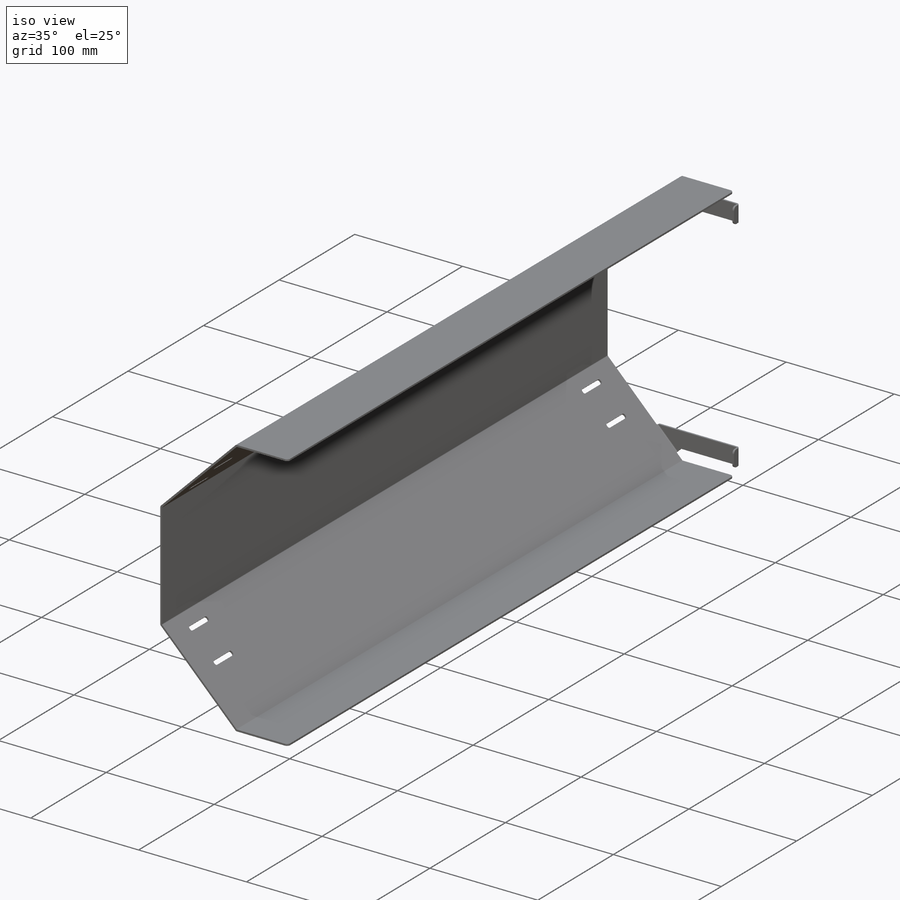
[diagram: iso view]
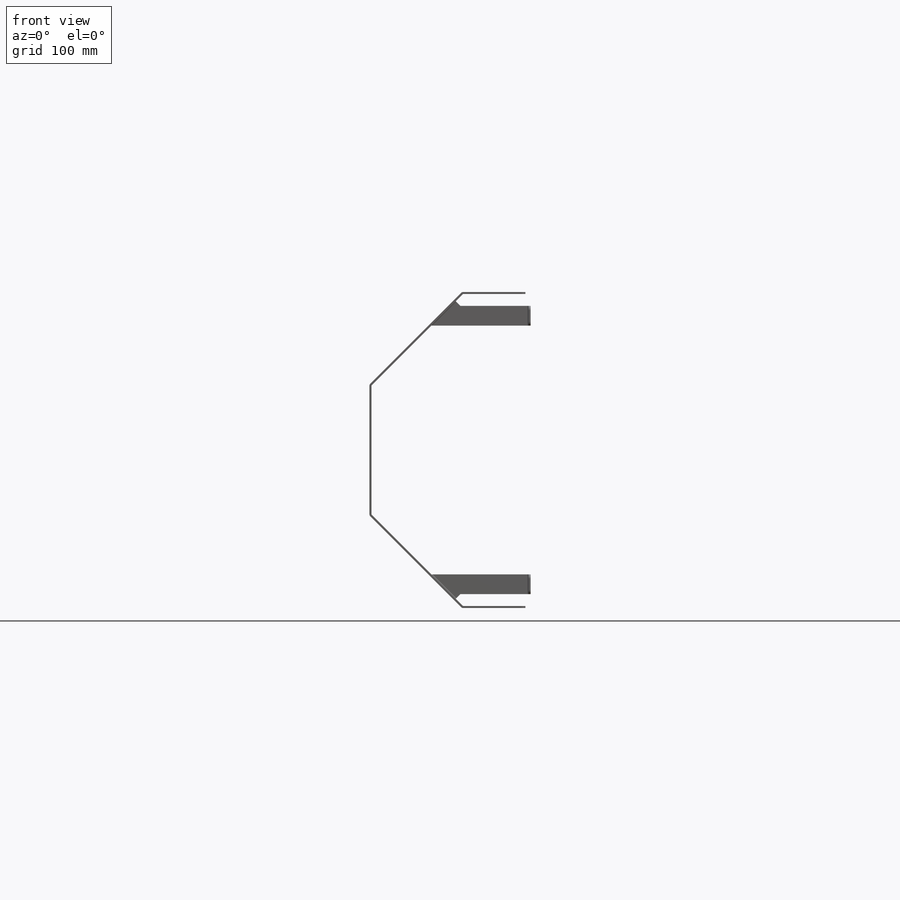
[diagram: front view]
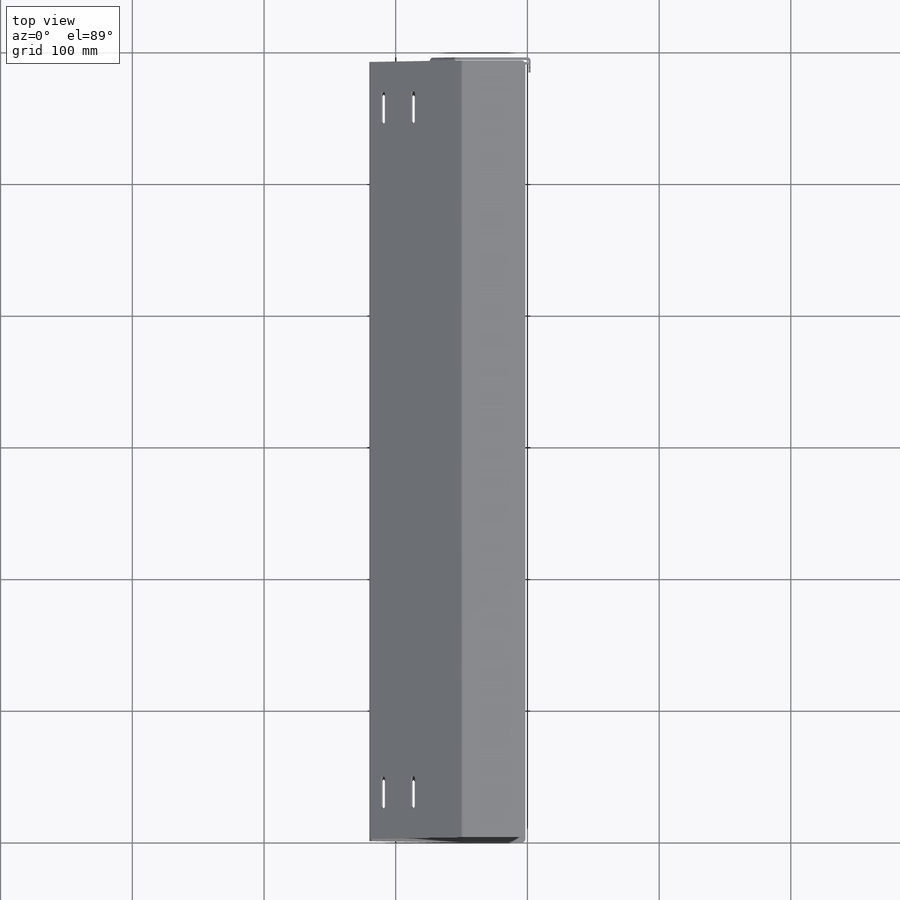
[diagram: top view]
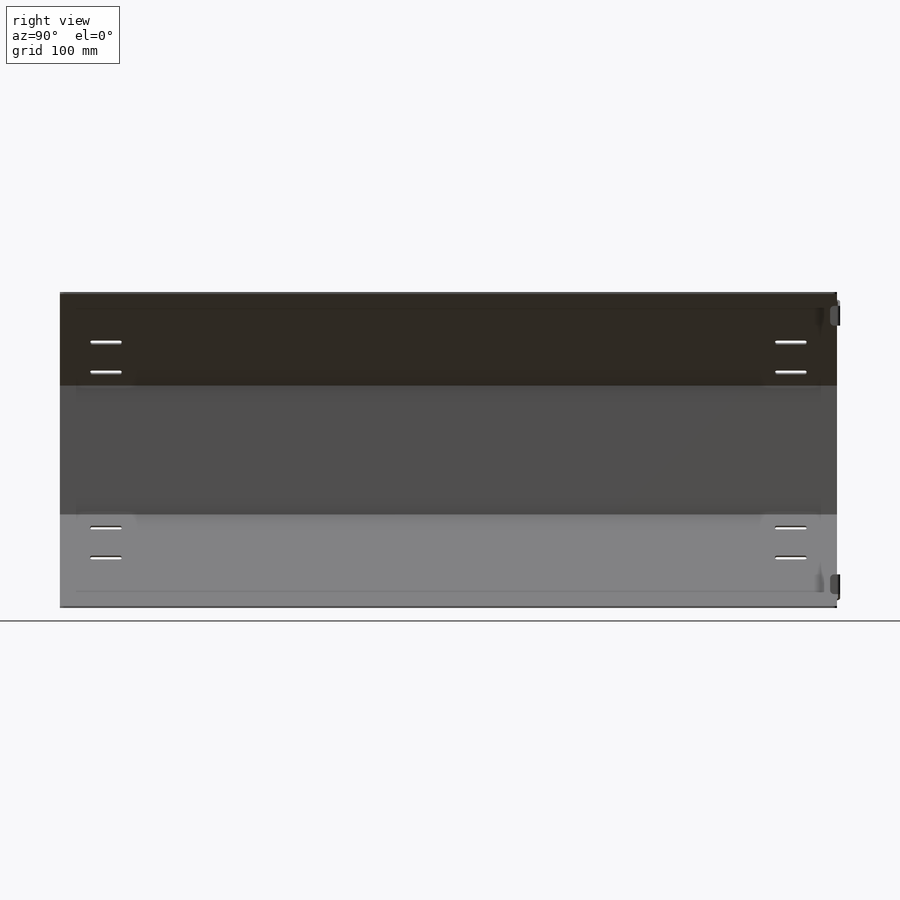
[diagram: right view]
SOLIDWORKS PART (.sldprt)
format: sldprt  version: not decoded by parser v0  size: 505,856 bytes
history: native  units: mm
features: sketch x6, sheet_metal_op x5, mirror x3, material x1, plane x1, cut_extrude x1, fillet x1 + 8 further entries (+11 scaffold rows collapsed; 1 parser-record rows omitted)
feature tree (38):
  scaffold x11  (default folders/planes/origin — collapsed)
  material  "5052-O"
  sketch  "Sketch1"  dims[D1=236.8mm D2=1.6mm]
  sheet_metal_op  "Sheet-Metal1"
  sheet_metal_op  "Base-Flange1"
  sheet_metal_op  "BaseBend15"
  sheet_metal_op  "BaseBend16"
  sheet_metal_op  "BaseBend17"
  plane  "Midplane"
  sketch  "Sketch32"  dims[c1.D1=23.0mm c1.D2=11.191mm c1.D3=36.0mm c1.D4=4.0mm c1.D5=24.0mm c2.D2=49.775mm c2.D3=36.0mm c2.D6=0.05mm]
  cut_extrude  "Cut-Extrude1"  [1 undecoded]
  fillet  "Fillet1"  Radius=1.5mm
  mirror  "Mirror2"
  mirror  "Mirror3"
  sketch  "Sketch37"  dims[c1.D1=15.0mm c1.D2=9.0mm c1.D3=5.0mm c2.D1=0.8mm c2.D4=90.0deg c2.D5=22.0 c2.D8=0.8mm c2.D9=0.8mm c3.D1=0.8mm c3.D2=500.0mm c3.D3=0.0mm c3.D6=10.0mm c3.D7=43.0mm]
  sketch  "Sketch40"  dims[c1.D1=0.8mm c1.D4=90.0deg c1.D5=23.0 c1.D8=0.8mm c1.D9=0.8mm c2.D1=0.8mm c2.D2=500.0mm c2.D3=0.0mm c2.D6=1.6mm c2.D7=6.0mm]
  mirror  "Mirror4"
  "Flat-Pattern1"
  sketch  "Bend-Lines1"
  sketch  "Bounding-Box1"
  "Flatten-<BaseBend15>1"
  "Flatten-<BaseBend16>1"
  "Flatten-<BaseBend17>1"
  "Flatten-<EdgeBend1>1"
  parser-record x1  (decoder bookkeeping rows leaked as tree rows — omitted from the tree; the rows remain in map.json)
  "Flatten-<EdgeBend2>1"
  "Flatten-<MirrorBend4>1"
  "Flatten-<MirrorBend5>1"
decode coverage: 5 of 16 modeling features carry decoded parameters; 8 rows unclassified (native names shown)
note: 1 parameter value undecoded
note: suppression state not decoded; provenance and decode notes live in map.json
